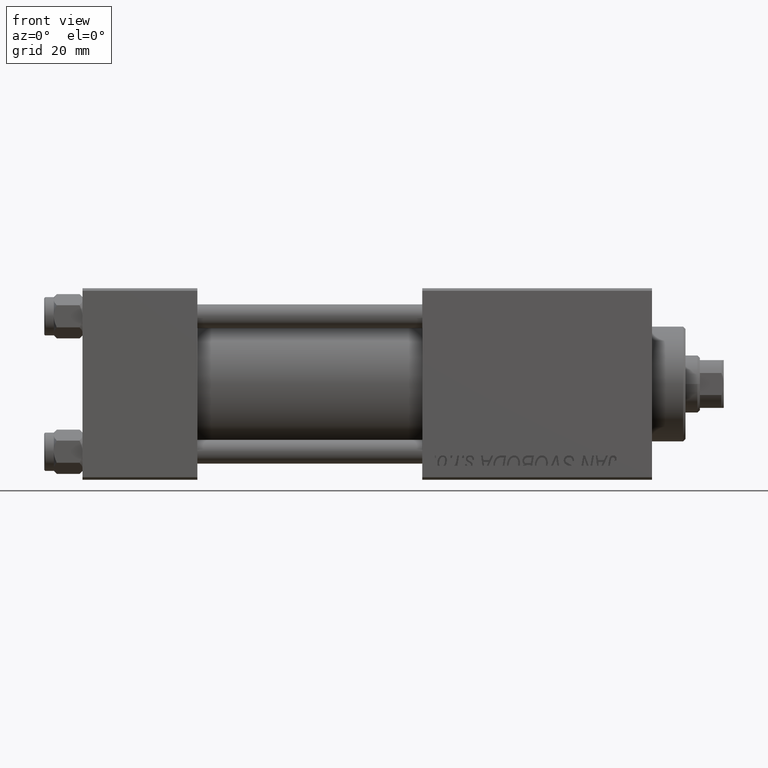
[diagram: clean part render]
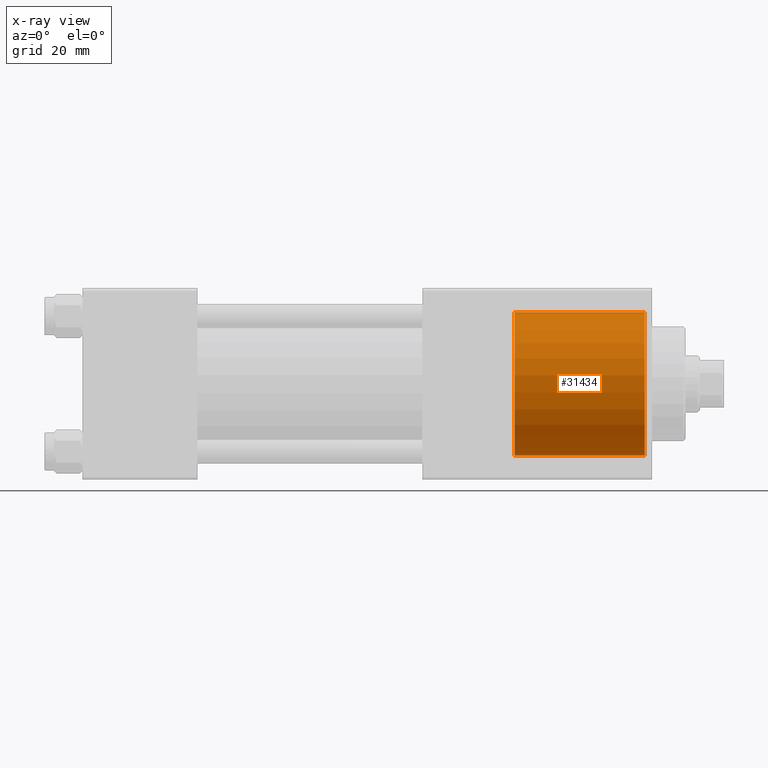
[diagram: x-ray — body ghosted, one internal face saturated and labeled with its STEP entity id]
A machine part, front view, then the same camera in x-ray: the body is ghosted and one INTERNAL B-rep face — a face not visible from any outside direction — is saturated and labeled: STEP entity #31434.
In plain terms, the highlighted cylindrical surface (partial cylindrical patch) has radius 15 mm, axis along (1, 0, 0).
Its self-contained STEP definition (entity closure, byte-faithful):
#1561 = VERTEX_POINT ( 'NONE', #9666 ) ;
#1884 = AXIS2_PLACEMENT_3D ( 'NONE', #26929, #15475, #37875 ) ;
#3696 = VERTEX_POINT ( 'NONE', #6784 ) ;
#6784 = CARTESIAN_POINT ( 'NONE',  ( 117.5000000000000000, 0.000000000000000000, -15.00000000000000000 ) ) ;
#8558 = EDGE_CURVE ( 'NONE', #20447, #35137, #36982, .T. ) ;
#9666 = CARTESIAN_POINT ( 'NONE',  ( 90.30000000000001137, 0.000000000000000000, -15.00000000000000000 ) ) ;
#10027 = EDGE_LOOP ( 'NONE', ( #43234, #11744, #39240, #38735 ) ) ;
#10277 = DIRECTION ( 'NONE',  ( 1.000000000000000000, -0.000000000000000000, -0.000000000000000000 ) ) ;
#11744 = ORIENTED_EDGE ( 'NONE', *, *, #8558, .T. ) ;
#15475 = DIRECTION ( 'NONE',  ( 1.000000000000000000, 0.000000000000000000, 0.000000000000000000 ) ) ;
#15579 = AXIS2_PLACEMENT_3D ( 'NONE', #47852, #15904, #39060 ) ;
#15904 = DIRECTION ( 'NONE',  ( 1.000000000000000000, 0.000000000000000000, 0.000000000000000000 ) ) ;
#17011 = CARTESIAN_POINT ( 'NONE',  ( 90.30000000000001137, 0.000000000000000000, -15.00000000000000000 ) ) ;
#17912 = CARTESIAN_POINT ( 'NONE',  ( 90.30000000000001137, 1.836970198721029589E-15, 15.00000000000000000 ) ) ;
#20447 = VERTEX_POINT ( 'NONE', #25822 ) ;
#23394 = CYLINDRICAL_SURFACE ( 'NONE', #26243, 15.00000000000000000 ) ;
#23891 = CARTESIAN_POINT ( 'NONE',  ( 90.30000000000001137, 0.000000000000000000, 0.000000000000000000 ) ) ;
#24287 = EDGE_CURVE ( 'NONE', #1561, #3696, #39921, .T. ) ;
#24649 = EDGE_CURVE ( 'NONE', #35137, #3696, #42351, .T. ) ;
#25822 = CARTESIAN_POINT ( 'NONE',  ( 90.30000000000001137, 1.836970198721029589E-15, 15.00000000000000000 ) ) ;
#26243 = AXIS2_PLACEMENT_3D ( 'NONE', #23891, #42954, #39153 ) ;
#26929 = CARTESIAN_POINT ( 'NONE',  ( 90.30000000000001137, 0.000000000000000000, 0.000000000000000000 ) ) ;
#27944 = FACE_OUTER_BOUND ( 'NONE', #10027, .T. ) ;
#31434 = ADVANCED_FACE ( 'NONE', ( #27944 ), #23394, .F. ) ;
#32532 = DIRECTION ( 'NONE',  ( 1.000000000000000000, -0.000000000000000000, -0.000000000000000000 ) ) ;
#33111 = EDGE_CURVE ( 'NONE', #20447, #1561, #45796, .T. ) ;
#35137 = VERTEX_POINT ( 'NONE', #49214 ) ;
#36982 = LINE ( 'NONE', #17912, #37998 ) ;
#37875 = DIRECTION ( 'NONE',  ( 0.000000000000000000, 0.000000000000000000, -1.000000000000000000 ) ) ;
#37998 = VECTOR ( 'NONE', #10277, 1000.000000000000000 ) ;
#38289 = VECTOR ( 'NONE', #32532, 1000.000000000000000 ) ;
#38735 = ORIENTED_EDGE ( 'NONE', *, *, #24287, .F. ) ;
#39060 = DIRECTION ( 'NONE',  ( 0.000000000000000000, 0.000000000000000000, 1.000000000000000000 ) ) ;
#39153 = DIRECTION ( 'NONE',  ( 0.000000000000000000, 0.000000000000000000, -1.000000000000000000 ) ) ;
#39240 = ORIENTED_EDGE ( 'NONE', *, *, #24649, .T. ) ;
#39921 = LINE ( 'NONE', #17011, #38289 ) ;
#42351 = CIRCLE ( 'NONE', #15579, 15.00000000000000000 ) ;
#42954 = DIRECTION ( 'NONE',  ( 1.000000000000000000, -0.000000000000000000, -0.000000000000000000 ) ) ;
#43234 = ORIENTED_EDGE ( 'NONE', *, *, #33111, .F. ) ;
#45796 = CIRCLE ( 'NONE', #1884, 15.00000000000000000 ) ;
#47852 = CARTESIAN_POINT ( 'NONE',  ( 117.5000000000000000, 0.000000000000000000, 0.000000000000000000 ) ) ;
#49214 = CARTESIAN_POINT ( 'NONE',  ( 117.5000000000000000, 1.836970198721029589E-15, 15.00000000000000000 ) ) ;